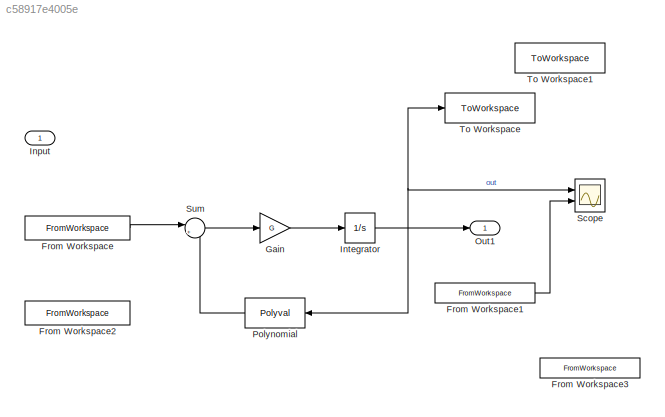
MODEL slx_c58917e4005e
KIND model
CONFIG AbsTol = auto
CONFIG EnableMultiTasking = off
CONFIG FixedStep = 0.01
CONFIG MaxStep = auto
CONFIG MinStep = auto
CONFIG RelTol = 1e-3
CONFIG SampleTimeConstraint = Unconstrained
CONFIG SolverName = FixedStepAuto
CONFIG StartTime = 0.0
CONFIG StopTime = 60
WORKSPACE source: mxarray member
WORKSPACE lab4_G_coeff_model_for_estimation_spesession: sldodialogs.data.SessionData (value not decoded)
BLOCK [FromWorkspace] From Workspace
  VariableName = [walidacja_modelu_nr2.time, walidacja_modelu_nr2.signals(7).values]
BLOCK [FromWorkspace] From Workspace1
  VariableName = [walidacja_modelu_nr2.time, walidacja_modelu_nr2.signals(5).values]
BLOCK [FromWorkspace] From Workspace2
  VariableName = [pomiar_charakterystyki_silnika_dodatni.time, pomiar_charakterystyki_silnika_dodatni.signals(7).values]
BLOCK [FromWorkspace] From Workspace3
  VariableName = [pomiar_charakterystyki_silnika_dodatni.time, pomiar_charakterystyki_silnika_dodatni.signals(5).values]
BLOCK [Gain] Gain
  Gain = G
BLOCK [Inport] Input
BLOCK [Integrator] Integrator
  Ports = [1, 1]
BLOCK [Outport] Out1
BLOCK [Polyval] Polynomial
  Coefs = p
  NameLocation = top
BLOCK [Scope] Scope
  Floating = off
  NumInputPorts = 2
  Ports = [2]
  ScopeSpecificationString = Simulink.scopes.TimeScopeBlockCfg('CurrentConfiguration', extmgr.ConfigurationSet(extmgr.Configuration('Core','General UI',true),extmgr.Configuration('Core','Source UI',true),extmgr.Configuration('Sources','WiredSimulink',true,'DataLoggingVariableName','Engine_validation_rpm','DataLoggingSaveFormat','StructureWithTime','DataLogging',true),extmgr.Configuration('Visuals','Time Domain',true,'Serializ...<+1501ch>
BLOCK [Sum] Sum
  Inputs = |+-
  Ports = [2, 1]
BLOCK [ToWorkspace] To Workspace
  FixptAsFi = on
  MaxDataPoints = inf
  Ports = [1]
  SampleTime = -1
  SaveFormat = Timeseries
  VariableName = Estimated_output_walidacja_nr2
BLOCK [ToWorkspace] To Workspace1
  Commented = on
  FixptAsFi = on
  MaxDataPoints = inf
  Ports = [1]
  SampleTime = -1
  SaveFormat = Timeseries
  VariableName = Estimated_output
LINE From Workspace1:1 -> Scope:2
LINE From Workspace:1 -> Sum:1
LINE Gain:1 -> Integrator:1
NET Integrator:1 -> Out1:1, Polynomial:1, Scope:1, To Workspace:1
LINE Polynomial:1 -> Sum:2
LINE Sum:1 -> Gain:1
note: NET lines group one-source signal fan-out (src -> all destinations, sorted); 1:1 wires keep LINE
